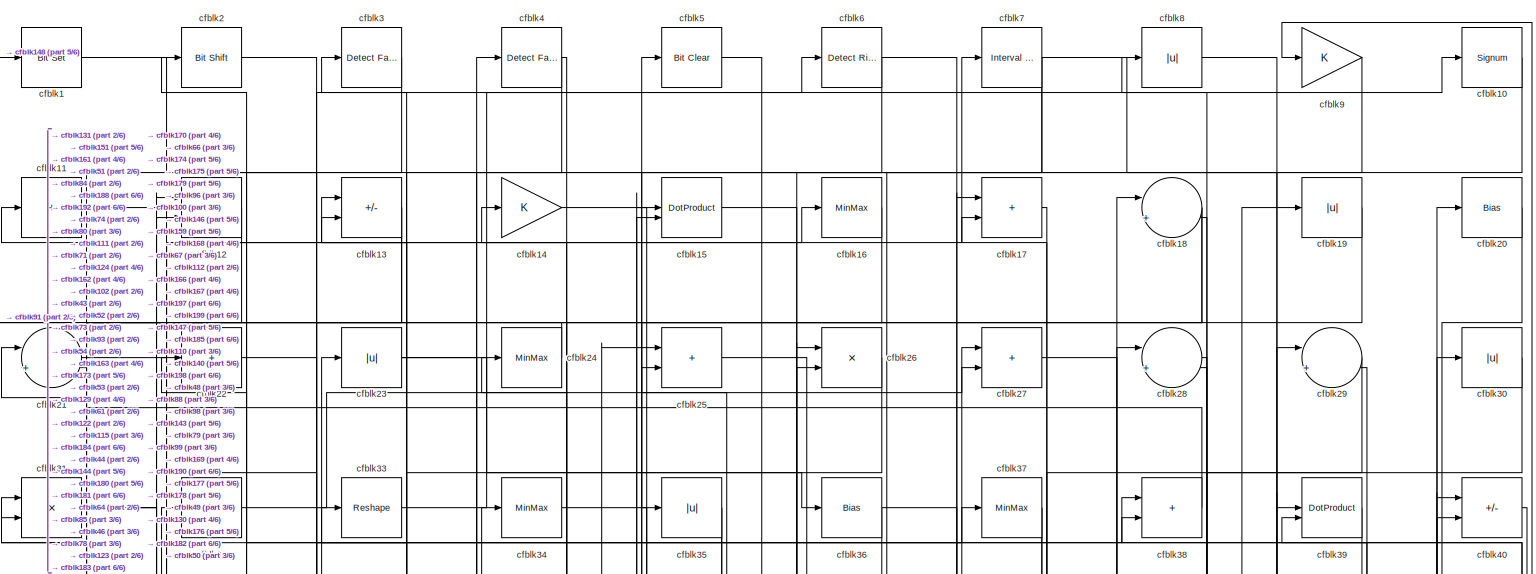
[diagram: root canvas - part 1/6, full width, top band]
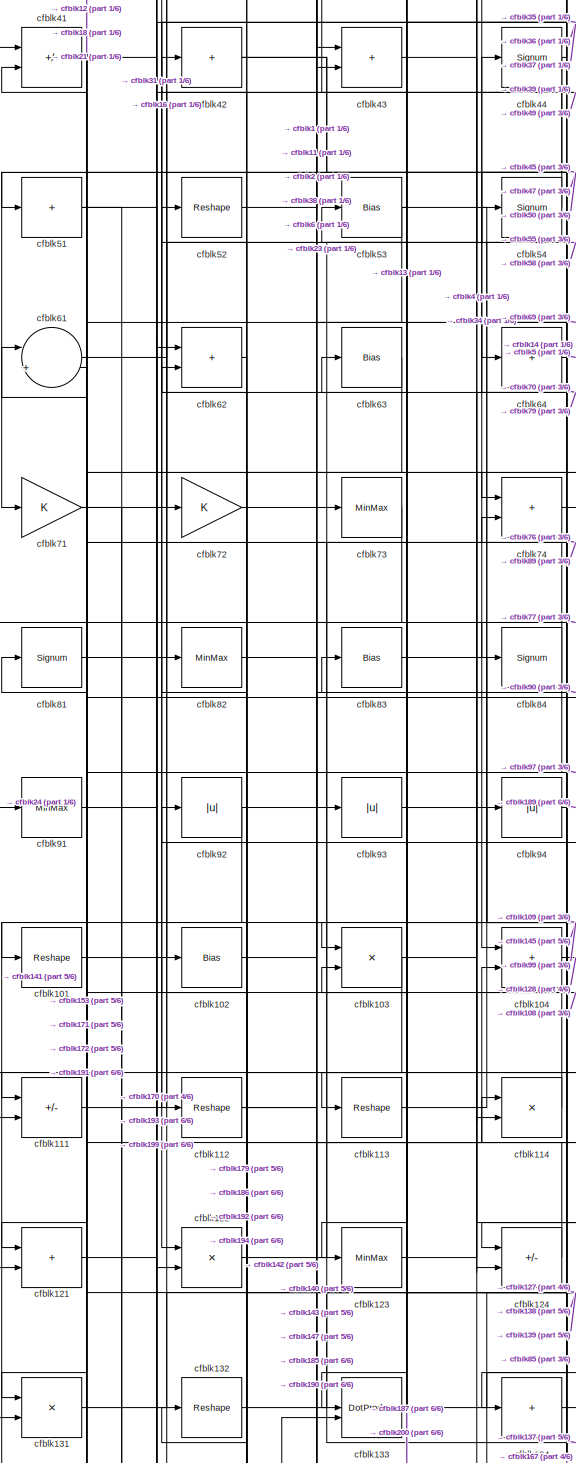
[diagram: root canvas - part 2/6, middle left region]
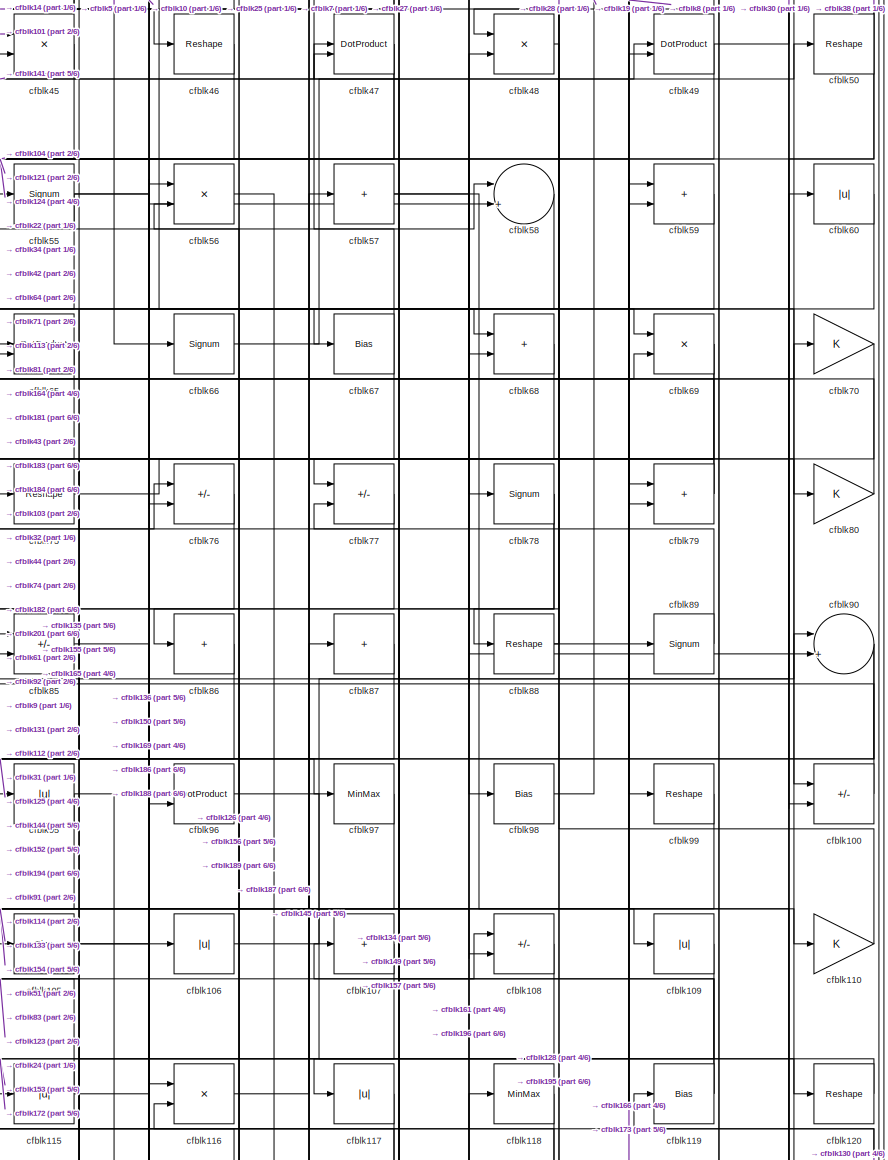
[diagram: root canvas - part 3/6, middle right region]
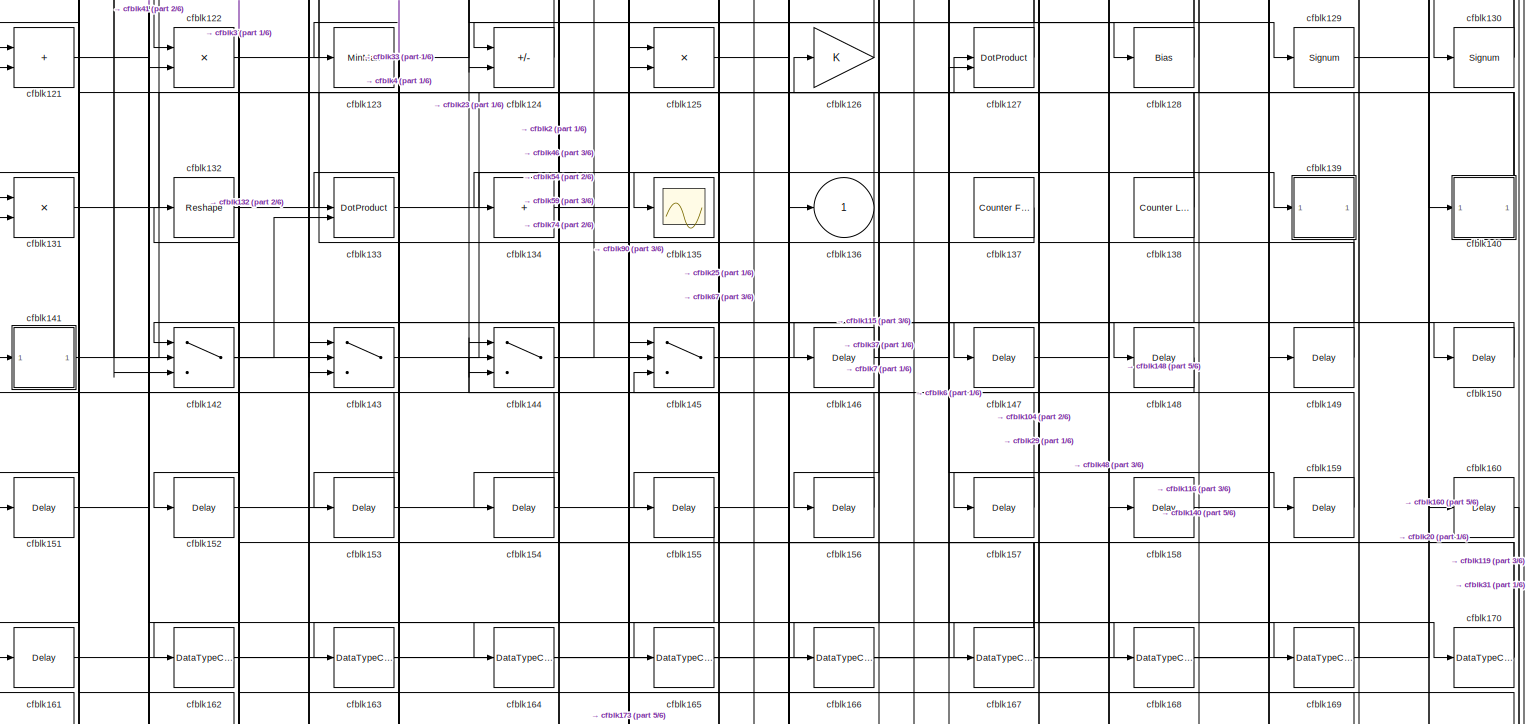
[diagram: root canvas - part 4/6, full width, bottom band]
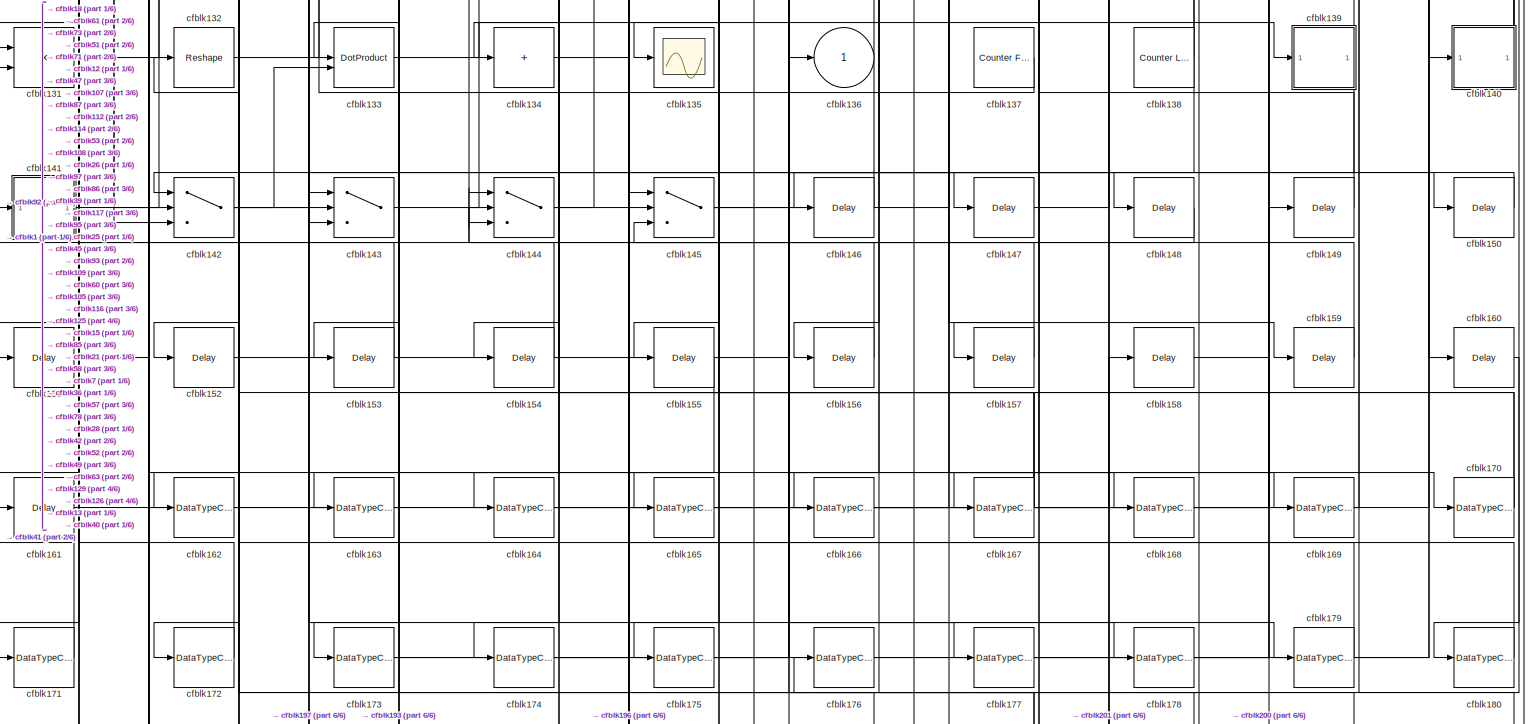
[diagram: root canvas - part 5/6, full width, bottom band]
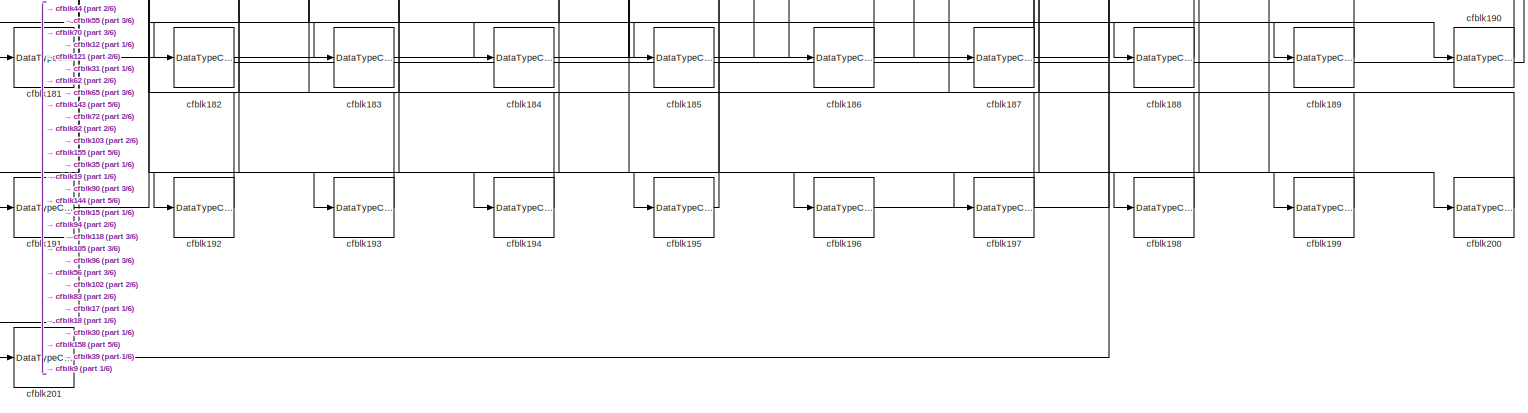
[diagram: root canvas - part 6/6, full width, bottom band]
MODEL slx_6c35f299616f
KIND model
CONFIG AbsTol = auto
CONFIG EnableMultiTasking = off
CONFIG FixedStep = auto
CONFIG MaxStep = auto
CONFIG MinStep = auto
CONFIG RelTol = 1e-3
CONFIG SampleTimeConstraint = Unconstrained
CONFIG SolverName = VariableStepAuto
CONFIG StartTime = 0.0
CONFIG StopTime = 10.0
BLOCK [Reference] cfblk1  REF=simulink/Logic and Bit
Operations/Bit Set
  LibrarySourceBlock = hdlsllib/Logic and Bit\nOperations/Bit Set
  SourceBlock = simulink/Logic and Bit\nOperations/Bit Set
  SourceType = Bit Set
BLOCK [Signum] cfblk10
BLOCK [Sum] cfblk100
  IconShape = rectangular
  Inputs = +-
BLOCK [Reshape] cfblk101
BLOCK [Bias] cfblk102
  Bias = 0.0
  SaturateOnIntegerOverflow = off
BLOCK [Product] cfblk103
  Inputs = */
  RndMeth = Zero
  SaturateOnIntegerOverflow = on
BLOCK [Sum] cfblk104
  IconShape = rectangular
BLOCK [Bias] cfblk105
  Bias = 0.0
  SaturateOnIntegerOverflow = off
BLOCK [Abs] cfblk106
  SaturateOnIntegerOverflow = off
BLOCK [Sum] cfblk107
  IconShape = rectangular
  Inputs = +
BLOCK [Sum] cfblk108
  IconShape = rectangular
  Inputs = +-
BLOCK [Abs] cfblk109
  SaturateOnIntegerOverflow = off
BLOCK [Sum] cfblk11
  IconShape = rectangular
  Inputs = +
BLOCK [Gain] cfblk110
BLOCK [Sum] cfblk111
  IconShape = rectangular
  Inputs = +-
BLOCK [Reshape] cfblk112
BLOCK [Reshape] cfblk113
BLOCK [Product] cfblk114
  Inputs = */
  RndMeth = Zero
  SaturateOnIntegerOverflow = on
BLOCK [Abs] cfblk115
  SaturateOnIntegerOverflow = off
BLOCK [Product] cfblk116
  Inputs = */
  RndMeth = Zero
  SaturateOnIntegerOverflow = on
BLOCK [Abs] cfblk117
  SaturateOnIntegerOverflow = off
BLOCK [MinMax] cfblk118
BLOCK [Bias] cfblk119
  Bias = 0.0
  SaturateOnIntegerOverflow = off
BLOCK [Sum] cfblk12
  IconShape = rectangular
BLOCK [Reshape] cfblk120
BLOCK [Sum] cfblk121
  IconShape = rectangular
BLOCK [Product] cfblk122
  Inputs = */
  RndMeth = Zero
  SaturateOnIntegerOverflow = on
BLOCK [MinMax] cfblk123
BLOCK [Sum] cfblk124
  IconShape = rectangular
  Inputs = +-
BLOCK [Product] cfblk125
  Inputs = */
  RndMeth = Zero
  SaturateOnIntegerOverflow = on
BLOCK [Gain] cfblk126
BLOCK [DotProduct] cfblk127
  OutDataTypeStr = Inherit: Inherit via internal rule
BLOCK [Bias] cfblk128
  Bias = 0.0
  SaturateOnIntegerOverflow = off
BLOCK [Signum] cfblk129
BLOCK [Sum] cfblk13
  IconShape = rectangular
  Inputs = +-
BLOCK [Signum] cfblk130
BLOCK [Product] cfblk131
  Inputs = */
  RndMeth = Zero
  SaturateOnIntegerOverflow = on
BLOCK [Reshape] cfblk132
BLOCK [DotProduct] cfblk133
  OutDataTypeStr = Inherit: Inherit via internal rule
BLOCK [Sum] cfblk134
  IconShape = rectangular
  Inputs = +
BLOCK [Scope] cfblk135
  Floating = off
  NumInputPorts = 1
  ScopeSpecificationString = Simulink.scopes.TimeScopeBlockCfg('CurrentConfiguration', extmgr.ConfigurationSet(extmgr.Configuration('Core','General UI',true),extmgr.Configuration('Core','Source UI',true),extmgr.Configuration('Sources','WiredSimulink',true,'DataLoggingVariableName','ScopeData2','DataLoggingSaveFormat','Array','DataLoggingLimitDataPoints',true,'DataLoggingDecimation','1'),extmgr.Configuration('Visuals','Time Do...<+868ch>
BLOCK [Outport] cfblk136
  VectorParamsAs1DForOutWhenUnconnected = off
BLOCK [Reference] cfblk137  REF=hdlsllib/Sources/Counter
Free-Running
  SourceBlock = hdlsllib/Sources/Counter\nFree-Running
  SourceType = Counter Free-Running
BLOCK [Reference] cfblk138  REF=hdlsllib/Sources/Counter
Limited
  SourceBlock = hdlsllib/Sources/Counter\nLimited
  SourceType = Counter Limited
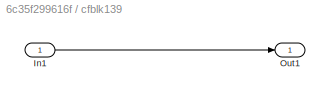
BLOCK [SubSystem] cfblk139
  LibrarySourceBlock = hdlsllib/Ports &\nSubsystems/Subsystem
BLOCK [Inport] cfblk139/In1
BLOCK [Outport] cfblk139/Out1
BLOCK [Gain] cfblk14
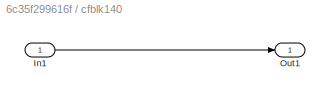
BLOCK [SubSystem] cfblk140
  LibrarySourceBlock = hdlsllib/Ports &\nSubsystems/Subsystem
BLOCK [Inport] cfblk140/In1
BLOCK [Outport] cfblk140/Out1
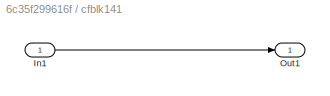
BLOCK [SubSystem] cfblk141
  LibrarySourceBlock = hdlsllib/Ports &\nSubsystems/Subsystem
BLOCK [Inport] cfblk141/In1
BLOCK [Outport] cfblk141/Out1
BLOCK [Switch] cfblk142
  InputSameDT = off
  SaturateOnIntegerOverflow = off
BLOCK [Switch] cfblk143
  InputSameDT = off
  SaturateOnIntegerOverflow = off
BLOCK [Switch] cfblk144
  InputSameDT = off
  SaturateOnIntegerOverflow = off
BLOCK [Switch] cfblk145
  InputSameDT = off
  SaturateOnIntegerOverflow = off
BLOCK [Delay] cfblk146
  InputPortMap = u0
  SampleTime = 1
BLOCK [Delay] cfblk147
  InputPortMap = u0
  SampleTime = 1
BLOCK [Delay] cfblk148
  InputPortMap = u0
  SampleTime = 1
BLOCK [Delay] cfblk149
  InputPortMap = u0
  SampleTime = 1
BLOCK [DotProduct] cfblk15
  OutDataTypeStr = Inherit: Inherit via internal rule
BLOCK [Delay] cfblk150
  InputPortMap = u0
  SampleTime = 1
BLOCK [Delay] cfblk151
  InputPortMap = u0
  SampleTime = 1
BLOCK [Delay] cfblk152
  InputPortMap = u0
  SampleTime = 1
BLOCK [Delay] cfblk153
  InputPortMap = u0
  SampleTime = 1
BLOCK [Delay] cfblk154
  InputPortMap = u0
  SampleTime = 1
BLOCK [Delay] cfblk155
  InputPortMap = u0
  SampleTime = 1
BLOCK [Delay] cfblk156
  InputPortMap = u0
  SampleTime = 1
BLOCK [Delay] cfblk157
  InputPortMap = u0
  SampleTime = 1
BLOCK [Delay] cfblk158
  InputPortMap = u0
  SampleTime = 1
BLOCK [Delay] cfblk159
  InputPortMap = u0
  SampleTime = 1
BLOCK [MinMax] cfblk16
BLOCK [Delay] cfblk160
  InputPortMap = u0
  SampleTime = 1
BLOCK [Delay] cfblk161
  InputPortMap = u0
  SampleTime = 1
BLOCK [DataTypeConversion] cfblk162
  OutDataTypeStr = uint8
  RndMeth = Floor
  SaturateOnIntegerOverflow = off
BLOCK [DataTypeConversion] cfblk163
  OutDataTypeStr = uint8
  RndMeth = Floor
  SaturateOnIntegerOverflow = off
BLOCK [DataTypeConversion] cfblk164
  OutDataTypeStr = uint8
  RndMeth = Floor
  SaturateOnIntegerOverflow = off
BLOCK [DataTypeConversion] cfblk165
  OutDataTypeStr = uint8
  RndMeth = Floor
  SaturateOnIntegerOverflow = off
BLOCK [DataTypeConversion] cfblk166
  OutDataTypeStr = uint8
  RndMeth = Floor
  SaturateOnIntegerOverflow = off
BLOCK [DataTypeConversion] cfblk167
  RndMeth = Floor
  SaturateOnIntegerOverflow = off
BLOCK [DataTypeConversion] cfblk168
  OutDataTypeStr = uint8
  RndMeth = Floor
  SaturateOnIntegerOverflow = off
BLOCK [DataTypeConversion] cfblk169
  OutDataTypeStr = uint8
  RndMeth = Floor
  SaturateOnIntegerOverflow = off
BLOCK [Sum] cfblk17
  IconShape = rectangular
BLOCK [DataTypeConversion] cfblk170
  RndMeth = Floor
  SaturateOnIntegerOverflow = off
BLOCK [DataTypeConversion] cfblk171
  OutDataTypeStr = uint8
  RndMeth = Floor
  SaturateOnIntegerOverflow = off
BLOCK [DataTypeConversion] cfblk172
  OutDataTypeStr = uint8
  RndMeth = Floor
  SaturateOnIntegerOverflow = off
BLOCK [DataTypeConversion] cfblk173
  RndMeth = Floor
  SaturateOnIntegerOverflow = off
BLOCK [DataTypeConversion] cfblk174
  OutDataTypeStr = uint8
  RndMeth = Floor
  SaturateOnIntegerOverflow = off
BLOCK [DataTypeConversion] cfblk175
  OutDataTypeStr = uint8
  RndMeth = Floor
  SaturateOnIntegerOverflow = off
BLOCK [DataTypeConversion] cfblk176
  OutDataTypeStr = uint8
  RndMeth = Floor
  SaturateOnIntegerOverflow = off
BLOCK [DataTypeConversion] cfblk177
  OutDataTypeStr = uint8
  RndMeth = Floor
  SaturateOnIntegerOverflow = off
BLOCK [DataTypeConversion] cfblk178
  OutDataTypeStr = uint8
  RndMeth = Floor
  SaturateOnIntegerOverflow = off
BLOCK [DataTypeConversion] cfblk179
  OutDataTypeStr = uint8
  RndMeth = Floor
  SaturateOnIntegerOverflow = off
BLOCK [Sum] cfblk18
  Inputs = |++
BLOCK [DataTypeConversion] cfblk180
  OutDataTypeStr = uint8
  RndMeth = Floor
  SaturateOnIntegerOverflow = off
BLOCK [DataTypeConversion] cfblk181
  OutDataTypeStr = uint8
  RndMeth = Floor
  SaturateOnIntegerOverflow = off
BLOCK [DataTypeConversion] cfblk182
  RndMeth = Floor
  SaturateOnIntegerOverflow = off
BLOCK [DataTypeConversion] cfblk183
  OutDataTypeStr = uint8
  RndMeth = Floor
  SaturateOnIntegerOverflow = off
BLOCK [DataTypeConversion] cfblk184
  OutDataTypeStr = uint8
  RndMeth = Floor
  SaturateOnIntegerOverflow = off
BLOCK [DataTypeConversion] cfblk185
  OutDataTypeStr = uint8
  RndMeth = Floor
  SaturateOnIntegerOverflow = off
BLOCK [DataTypeConversion] cfblk186
  OutDataTypeStr = uint8
  RndMeth = Floor
  SaturateOnIntegerOverflow = off
BLOCK [DataTypeConversion] cfblk187
  RndMeth = Floor
  SaturateOnIntegerOverflow = off
BLOCK [DataTypeConversion] cfblk188
  OutDataTypeStr = uint8
  RndMeth = Floor
  SaturateOnIntegerOverflow = off
BLOCK [DataTypeConversion] cfblk189
  OutDataTypeStr = uint8
  RndMeth = Floor
  SaturateOnIntegerOverflow = off
BLOCK [Abs] cfblk19
  SaturateOnIntegerOverflow = off
BLOCK [DataTypeConversion] cfblk190
  OutDataTypeStr = uint8
  RndMeth = Floor
  SaturateOnIntegerOverflow = off
BLOCK [DataTypeConversion] cfblk191
  OutDataTypeStr = uint8
  RndMeth = Floor
  SaturateOnIntegerOverflow = off
BLOCK [DataTypeConversion] cfblk192
  OutDataTypeStr = uint8
  RndMeth = Floor
  SaturateOnIntegerOverflow = off
BLOCK [DataTypeConversion] cfblk193
  OutDataTypeStr = uint8
  RndMeth = Floor
  SaturateOnIntegerOverflow = off
BLOCK [DataTypeConversion] cfblk194
  OutDataTypeStr = uint8
  RndMeth = Floor
  SaturateOnIntegerOverflow = off
BLOCK [DataTypeConversion] cfblk195
  OutDataTypeStr = uint8
  RndMeth = Floor
  SaturateOnIntegerOverflow = off
BLOCK [DataTypeConversion] cfblk196
  OutDataTypeStr = uint8
  RndMeth = Floor
  SaturateOnIntegerOverflow = off
BLOCK [DataTypeConversion] cfblk197
  OutDataTypeStr = uint8
  RndMeth = Floor
  SaturateOnIntegerOverflow = off
BLOCK [DataTypeConversion] cfblk198
  OutDataTypeStr = uint8
  RndMeth = Floor
  SaturateOnIntegerOverflow = off
BLOCK [DataTypeConversion] cfblk199
  OutDataTypeStr = uint8
  RndMeth = Floor
  SaturateOnIntegerOverflow = off
BLOCK [Reference] cfblk2  REF=hdlsllib/Logic and Bit
Operations/Bit Shift
  SourceBlock = hdlsllib/Logic and Bit\nOperations/Bit Shift
  SourceType = Bit Shift
BLOCK [Bias] cfblk20
  Bias = 0.0
  SaturateOnIntegerOverflow = off
BLOCK [DataTypeConversion] cfblk200
  OutDataTypeStr = uint8
  RndMeth = Floor
  SaturateOnIntegerOverflow = off
BLOCK [DataTypeConversion] cfblk201
  OutDataTypeStr = uint8
  RndMeth = Floor
  SaturateOnIntegerOverflow = off
BLOCK [Sum] cfblk21
  Inputs = |++
BLOCK [Sum] cfblk22
  IconShape = rectangular
  Inputs = +
BLOCK [Abs] cfblk23
  SaturateOnIntegerOverflow = off
BLOCK [MinMax] cfblk24
BLOCK [Sum] cfblk25
  IconShape = rectangular
BLOCK [Product] cfblk26
  Inputs = */
  RndMeth = Zero
  SaturateOnIntegerOverflow = on
BLOCK [Sum] cfblk27
  IconShape = rectangular
BLOCK [Sum] cfblk28
  Inputs = |++
BLOCK [Sum] cfblk29
  Inputs = |++
BLOCK [Reference] cfblk3  REF=hdlsllib/Logic and Bit
Operations/Detect Fall
Nonpositive
  SourceBlock = hdlsllib/Logic and Bit\nOperations/Detect Fall\nNonpositive
  SourceType = Detect Fall Nonpositive
BLOCK [Abs] cfblk30
  SaturateOnIntegerOverflow = off
BLOCK [Product] cfblk31
  Inputs = */
  RndMeth = Zero
  SaturateOnIntegerOverflow = on
BLOCK [Bias] cfblk32
  Bias = 0.0
  SaturateOnIntegerOverflow = off
BLOCK [Reshape] cfblk33
BLOCK [MinMax] cfblk34
BLOCK [Abs] cfblk35
  SaturateOnIntegerOverflow = off
BLOCK [Bias] cfblk36
  Bias = 0.0
  SaturateOnIntegerOverflow = off
BLOCK [MinMax] cfblk37
BLOCK [Sum] cfblk38
  IconShape = rectangular
BLOCK [DotProduct] cfblk39
  OutDataTypeStr = Inherit: Inherit via internal rule
BLOCK [Reference] cfblk4  REF=hdlsllib/Logic and Bit
Operations/Detect Fall
Nonpositive
  SourceBlock = hdlsllib/Logic and Bit\nOperations/Detect Fall\nNonpositive
  SourceType = Detect Fall Nonpositive
BLOCK [Sum] cfblk40
  IconShape = rectangular
  Inputs = +-
BLOCK [Sum] cfblk41
  IconShape = rectangular
  Inputs = +-
BLOCK [Sum] cfblk42
  IconShape = rectangular
  Inputs = +
BLOCK [Sum] cfblk43
  IconShape = rectangular
BLOCK [Signum] cfblk44
BLOCK [Product] cfblk45
  Inputs = */
  RndMeth = Zero
  SaturateOnIntegerOverflow = on
BLOCK [Reshape] cfblk46
BLOCK [DotProduct] cfblk47
  OutDataTypeStr = Inherit: Inherit via internal rule
BLOCK [Product] cfblk48
  Inputs = */
  RndMeth = Zero
  SaturateOnIntegerOverflow = on
BLOCK [DotProduct] cfblk49
  OutDataTypeStr = Inherit: Inherit via internal rule
BLOCK [Reference] cfblk5  REF=simulink/Logic and Bit
Operations/Bit Clear
  LibrarySourceBlock = hdlsllib/Logic and Bit\nOperations/Bit Clear
  SourceBlock = simulink/Logic and Bit\nOperations/Bit Clear
  SourceType = Bit Clear
BLOCK [Reshape] cfblk50
BLOCK [Sum] cfblk51
  IconShape = rectangular
  Inputs = +
BLOCK [Reshape] cfblk52
BLOCK [Bias] cfblk53
  Bias = 0.0
  SaturateOnIntegerOverflow = off
BLOCK [Signum] cfblk54
BLOCK [Signum] cfblk55
BLOCK [Product] cfblk56
  Inputs = */
  RndMeth = Zero
  SaturateOnIntegerOverflow = on
BLOCK [Sum] cfblk57
  IconShape = rectangular
  Inputs = +
BLOCK [Sum] cfblk58
  Inputs = |++
BLOCK [Sum] cfblk59
  IconShape = rectangular
BLOCK [Reference] cfblk6  REF=hdlsllib/Logic and Bit
Operations/Detect Rise
Nonnegative
  SourceBlock = hdlsllib/Logic and Bit\nOperations/Detect Rise\nNonnegative
  SourceType = Detect Rise Nonnegative
BLOCK [Abs] cfblk60
  SaturateOnIntegerOverflow = off
BLOCK [Sum] cfblk61
  Inputs = |++
BLOCK [Sum] cfblk62
  IconShape = rectangular
BLOCK [Bias] cfblk63
  Bias = 0.0
  SaturateOnIntegerOverflow = off
BLOCK [Sum] cfblk64
  IconShape = rectangular
  Inputs = +
BLOCK [DotProduct] cfblk65
  OutDataTypeStr = Inherit: Inherit via internal rule
BLOCK [Signum] cfblk66
BLOCK [Bias] cfblk67
  Bias = 0.0
  SaturateOnIntegerOverflow = off
BLOCK [Sum] cfblk68
  IconShape = rectangular
BLOCK [Product] cfblk69
  Inputs = */
  RndMeth = Zero
  SaturateOnIntegerOverflow = on
BLOCK [Reference] cfblk7  REF=hdlsllib/Logic and Bit
Operations/Interval Test
  SourceBlock = hdlsllib/Logic and Bit\nOperations/Interval Test
  SourceType = Interval Test
BLOCK [Gain] cfblk70
BLOCK [Gain] cfblk71
BLOCK [Gain] cfblk72
BLOCK [MinMax] cfblk73
BLOCK [Sum] cfblk74
  IconShape = rectangular
BLOCK [Reshape] cfblk75
BLOCK [Sum] cfblk76
  IconShape = rectangular
  Inputs = +-
BLOCK [Sum] cfblk77
  IconShape = rectangular
  Inputs = +-
BLOCK [Signum] cfblk78
BLOCK [Sum] cfblk79
  IconShape = rectangular
BLOCK [Abs] cfblk8
  SaturateOnIntegerOverflow = off
BLOCK [Gain] cfblk80
BLOCK [Signum] cfblk81
BLOCK [MinMax] cfblk82
BLOCK [Bias] cfblk83
  Bias = 0.0
  SaturateOnIntegerOverflow = off
BLOCK [Signum] cfblk84
BLOCK [Sum] cfblk85
  IconShape = rectangular
  Inputs = +-
BLOCK [Sum] cfblk86
  IconShape = rectangular
  Inputs = +
BLOCK [Sum] cfblk87
  IconShape = rectangular
  Inputs = +
BLOCK [Reshape] cfblk88
BLOCK [Signum] cfblk89
BLOCK [Gain] cfblk9
BLOCK [Sum] cfblk90
  Inputs = |++
BLOCK [MinMax] cfblk91
BLOCK [Abs] cfblk92
  SaturateOnIntegerOverflow = off
BLOCK [Abs] cfblk93
  SaturateOnIntegerOverflow = off
BLOCK [Abs] cfblk94
  SaturateOnIntegerOverflow = off
BLOCK [Abs] cfblk95
  SaturateOnIntegerOverflow = off
BLOCK [DotProduct] cfblk96
  OutDataTypeStr = Inherit: Inherit via internal rule
BLOCK [MinMax] cfblk97
BLOCK [Bias] cfblk98
  Bias = 0.0
  SaturateOnIntegerOverflow = off
BLOCK [Reshape] cfblk99
LINE cfblk100:1 -> cfblk31:1
LINE cfblk101:1 -> cfblk45:1
LINE cfblk102:1 -> cfblk6:1
NET cfblk103:1 -> cfblk121:2, cfblk70:1
LINE cfblk104:1 -> cfblk128:1
NET cfblk105:1 -> cfblk150:1, cfblk186:1
LINE cfblk106:1 -> cfblk60:1
LINE cfblk107:1 -> cfblk172:1
LINE cfblk108:1 -> cfblk153:1
LINE cfblk109:1 -> cfblk135:1
LINE cfblk10:1 -> cfblk96:2
LINE cfblk110:1 -> cfblk28:2
LINE cfblk111:1 -> cfblk16:1
NET cfblk112:1 -> cfblk147:1, cfblk90:1
LINE cfblk113:1 -> cfblk55:1
LINE cfblk114:1 -> cfblk81:1
NET cfblk115:1 -> cfblk169:1, cfblk24:1
LINE cfblk116:1 -> cfblk87:1
LINE cfblk117:1 -> cfblk134:1
LINE cfblk118:1 -> cfblk195:1
NET cfblk119:1 -> cfblk107:1, cfblk77:2
LINE cfblk11:1 -> cfblk73:1
LINE cfblk120:1 -> cfblk117:1
LINE cfblk121:1 -> cfblk199:1
LINE cfblk122:1 -> cfblk34:1
LINE cfblk123:1 -> cfblk108:1
LINE cfblk124:1 -> cfblk2:1
LINE cfblk125:1 -> cfblk148:1
LINE cfblk126:1 -> cfblk115:1
LINE cfblk127:1 -> cfblk104:2
LINE cfblk128:1 -> cfblk116:2
LINE cfblk129:1 -> cfblk160:1
LINE cfblk12:1 -> cfblk51:1
NET cfblk130:1 -> cfblk119:1, cfblk31:2
LINE cfblk131:1 -> cfblk85:2
LINE cfblk132:1 -> cfblk127:1
LINE cfblk133:1 -> cfblk139:1
LINE cfblk134:1 -> cfblk45:2
LINE cfblk137:1 -> cfblk53:1
NET cfblk138:1 -> cfblk143:3, cfblk42:1, cfblk52:1
LINE cfblk139/In1:1 -> cfblk139/Out1:1
NET cfblk139:1 -> cfblk174:1, cfblk63:1
NET cfblk13:1 -> cfblk131:1, cfblk43:2
LINE cfblk140/In1:1 -> cfblk140/Out1:1
NET cfblk140:1 -> cfblk126:1, cfblk13:1, cfblk18:2
LINE cfblk141/In1:1 -> cfblk141/Out1:1
LINE cfblk141:1 -> cfblk47:1
NET cfblk142:1 -> cfblk114:1, cfblk133:2, cfblk177:1
LINE cfblk143:1 -> cfblk39:1
NET cfblk144:1 -> cfblk196:1, cfblk25:1
NET cfblk145:1 -> cfblk175:1, cfblk178:1, cfblk57:1
LINE cfblk146:1 -> cfblk21:2
LINE cfblk147:1 -> cfblk28:1
LINE cfblk148:1 -> cfblk1:1
LINE cfblk149:1 -> cfblk47:2
LINE cfblk14:1 -> cfblk46:1
LINE cfblk150:1 -> cfblk142:1
LINE cfblk151:1 -> cfblk12:2
LINE cfblk152:1 -> cfblk116:1
LINE cfblk153:1 -> cfblk61:2
LINE cfblk154:1 -> cfblk144:2
LINE cfblk155:1 -> cfblk193:1
LINE cfblk156:1 -> cfblk144:1
LINE cfblk157:1 -> cfblk145:2
LINE cfblk158:1 -> cfblk200:1
LINE cfblk159:1 -> cfblk145:3
LINE cfblk15:1 -> cfblk179:1
LINE cfblk160:1 -> cfblk180:1
LINE cfblk161:1 -> cfblk48:2
LINE cfblk162:1 -> cfblk20:1
LINE cfblk163:1 -> cfblk3:1
LINE cfblk164:1 -> cfblk127:2
LINE cfblk165:1 -> cfblk59:1
LINE cfblk166:1 -> cfblk59:2
NET cfblk167:1 -> cfblk132:1, cfblk33:1, cfblk74:2
LINE cfblk168:1 -> cfblk29:1
LINE cfblk169:1 -> cfblk29:2
LINE cfblk16:1 -> cfblk35:1
NET cfblk170:1 -> cfblk25:2, cfblk54:1
LINE cfblk171:1 -> cfblk41:1
LINE cfblk172:1 -> cfblk41:2
NET cfblk173:1 -> cfblk125:1, cfblk49:2
LINE cfblk174:1 -> cfblk26:1
LINE cfblk175:1 -> cfblk26:2
LINE cfblk176:1 -> cfblk149:1
LINE cfblk177:1 -> cfblk40:1
LINE cfblk178:1 -> cfblk40:2
LINE cfblk179:1 -> cfblk92:1
LINE cfblk17:1 -> cfblk197:1
LINE cfblk180:1 -> cfblk15:1
LINE cfblk181:1 -> cfblk15:2
NET cfblk182:1 -> cfblk96:1, cfblk9:1
LINE cfblk183:1 -> cfblk65:1
LINE cfblk184:1 -> cfblk65:2
LINE cfblk185:1 -> cfblk18:1
LINE cfblk186:1 -> cfblk82:1
NET cfblk187:1 -> cfblk102:1, cfblk83:1
LINE cfblk188:1 -> cfblk56:1
LINE cfblk189:1 -> cfblk56:2
NET cfblk18:1 -> cfblk111:2, cfblk151:1
LINE cfblk190:1 -> cfblk39:2
LINE cfblk191:1 -> cfblk72:1
LINE cfblk192:1 -> cfblk12:1
LINE cfblk193:1 -> cfblk62:1
LINE cfblk194:1 -> cfblk62:2
LINE cfblk195:1 -> cfblk105:1
LINE cfblk196:1 -> cfblk118:1
LINE cfblk197:1 -> cfblk143:1
LINE cfblk198:1 -> cfblk17:1
LINE cfblk199:1 -> cfblk17:2
LINE cfblk19:1 -> cfblk184:1
LINE cfblk1:1 -> cfblk93:1
LINE cfblk200:1 -> cfblk103:2
LINE cfblk201:1 -> cfblk158:1
LINE cfblk20:1 -> cfblk130:1
LINE cfblk21:1 -> cfblk7:1
LINE cfblk22:1 -> cfblk67:1
NET cfblk23:1 -> cfblk129:1, cfblk36:1
LINE cfblk24:1 -> cfblk91:1
LINE cfblk25:1 -> cfblk100:1
LINE cfblk26:1 -> cfblk173:1
LINE cfblk27:1 -> cfblk98:1
LINE cfblk28:1 -> cfblk48:1
LINE cfblk29:1 -> cfblk167:1
LINE cfblk2:1 -> cfblk43:1
LINE cfblk30:1 -> cfblk198:1
NET cfblk31:1 -> cfblk188:1, cfblk74:1
LINE cfblk32:1 -> cfblk27:1
LINE cfblk33:1 -> cfblk10:1
LINE cfblk34:1 -> cfblk78:1
NET cfblk35:1 -> cfblk123:1, cfblk183:1
NET cfblk36:1 -> cfblk122:1, cfblk159:1
NET cfblk37:1 -> cfblk112:1, cfblk166:1
LINE cfblk38:1 -> cfblk11:1
LINE cfblk39:1 -> cfblk122:2
LINE cfblk3:1 -> cfblk162:1
LINE cfblk40:1 -> cfblk176:1
LINE cfblk41:1 -> cfblk170:1
NET cfblk42:1 -> cfblk76:2, cfblk79:2
LINE cfblk43:1 -> cfblk69:1
NET cfblk44:1 -> cfblk14:1, cfblk191:1
LINE cfblk45:1 -> cfblk104:1
LINE cfblk46:1 -> cfblk124:1
NET cfblk47:1 -> cfblk64:1, cfblk71:1
LINE cfblk48:1 -> cfblk88:1
NET cfblk49:1 -> cfblk30:1, cfblk68:2
NET cfblk4:1 -> cfblk163:1, cfblk84:1
NET cfblk50:1 -> cfblk100:2, cfblk121:1, cfblk22:1, cfblk38:2
NET cfblk51:1 -> cfblk109:1, cfblk142:2
LINE cfblk52:1 -> cfblk38:1
NET cfblk53:1 -> cfblk13:2, cfblk140:1, cfblk143:2
LINE cfblk54:1 -> cfblk23:1
NET cfblk55:1 -> cfblk181:1, cfblk58:2, cfblk68:1
LINE cfblk56:1 -> cfblk187:1
NET cfblk57:1 -> cfblk110:1, cfblk90:2
LINE cfblk58:1 -> cfblk156:1
LINE cfblk59:1 -> cfblk164:1
LINE cfblk5:1 -> cfblk66:1
LINE cfblk60:1 -> cfblk155:1
LINE cfblk61:1 -> cfblk4:1
LINE cfblk62:1 -> cfblk192:1
LINE cfblk63:1 -> cfblk101:1
LINE cfblk64:1 -> cfblk5:1
LINE cfblk65:1 -> cfblk182:1
LINE cfblk66:1 -> cfblk50:1
NET cfblk67:1 -> cfblk165:1, cfblk27:2
LINE cfblk68:1 -> cfblk77:1
NET cfblk69:1 -> cfblk114:2, cfblk95:1
NET cfblk6:1 -> cfblk124:2, cfblk168:1
LINE cfblk70:1 -> cfblk201:1
NET cfblk71:1 -> cfblk142:3, cfblk37:1
LINE cfblk72:1 -> cfblk190:1
LINE cfblk73:1 -> cfblk171:1
LINE cfblk74:1 -> cfblk69:2
LINE cfblk75:1 -> cfblk80:1
LINE cfblk76:1 -> cfblk131:2
LINE cfblk77:1 -> cfblk103:1
NET cfblk78:1 -> cfblk157:1, cfblk86:1
NET cfblk79:1 -> cfblk44:1, cfblk75:1
NET cfblk7:1 -> cfblk146:1, cfblk161:1, cfblk99:1
LINE cfblk80:1 -> cfblk32:1
LINE cfblk81:1 -> cfblk58:1
LINE cfblk82:1 -> cfblk185:1
LINE cfblk83:1 -> cfblk108:2
NET cfblk84:1 -> cfblk111:1, cfblk21:1
LINE cfblk85:1 -> cfblk136:1
LINE cfblk86:1 -> cfblk144:3
LINE cfblk87:1 -> cfblk152:1
NET cfblk88:1 -> cfblk89:1, cfblk8:1
LINE cfblk89:1 -> cfblk61:1
LINE cfblk8:1 -> cfblk79:1
NET cfblk90:1 -> cfblk125:2, cfblk194:1
NET cfblk91:1 -> cfblk49:1, cfblk97:1
NET cfblk92:1 -> cfblk141:1, cfblk76:1
NET cfblk93:1 -> cfblk145:1, cfblk94:1
LINE cfblk94:1 -> cfblk189:1
NET cfblk95:1 -> cfblk106:1, cfblk154:1
LINE cfblk96:1 -> cfblk120:1
LINE cfblk97:1 -> cfblk133:1
LINE cfblk98:1 -> cfblk19:1
LINE cfblk99:1 -> cfblk113:1
LINE cfblk9:1 -> cfblk85:1
note: NET lines group one-source signal fan-out (src -> all destinations, sorted); 1:1 wires keep LINE
